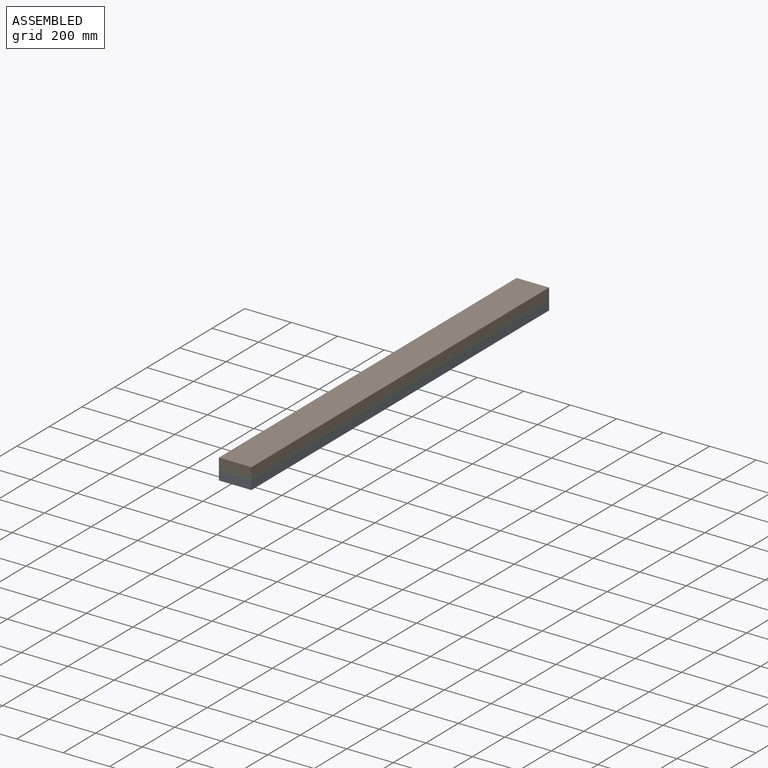
[diagram: assembled view]
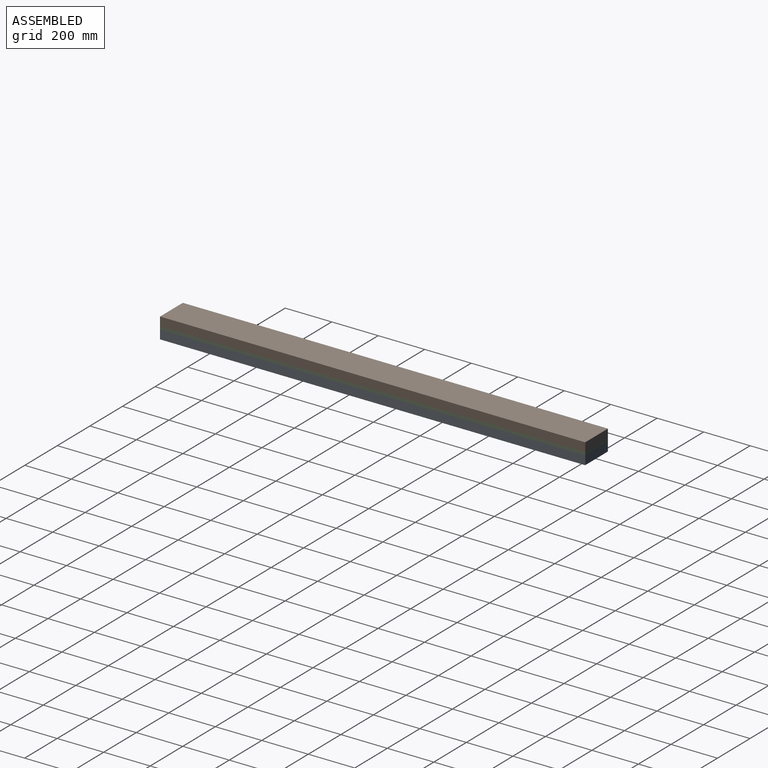
[diagram: assembled view, second angle]
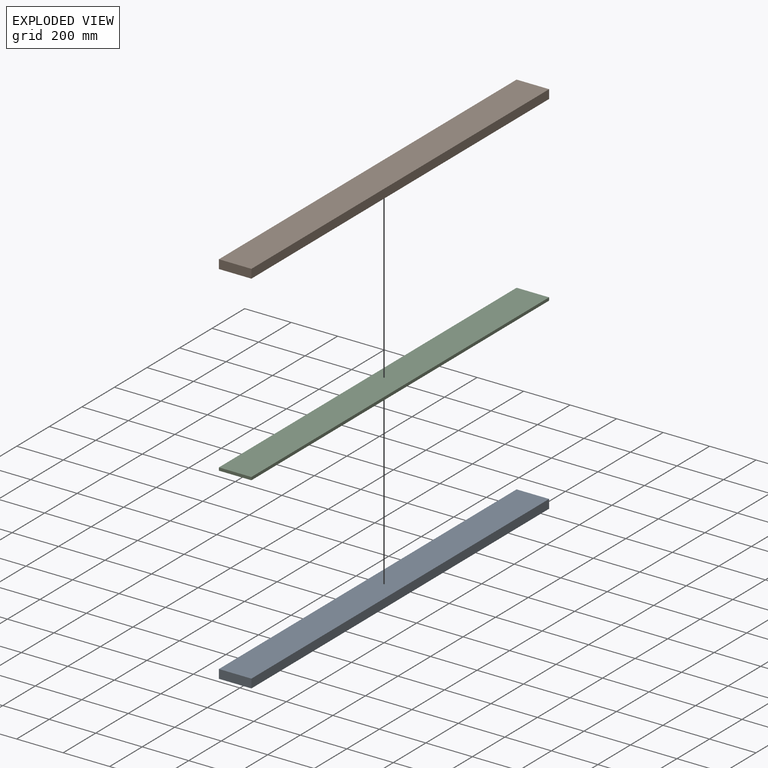
[diagram: exploded view]
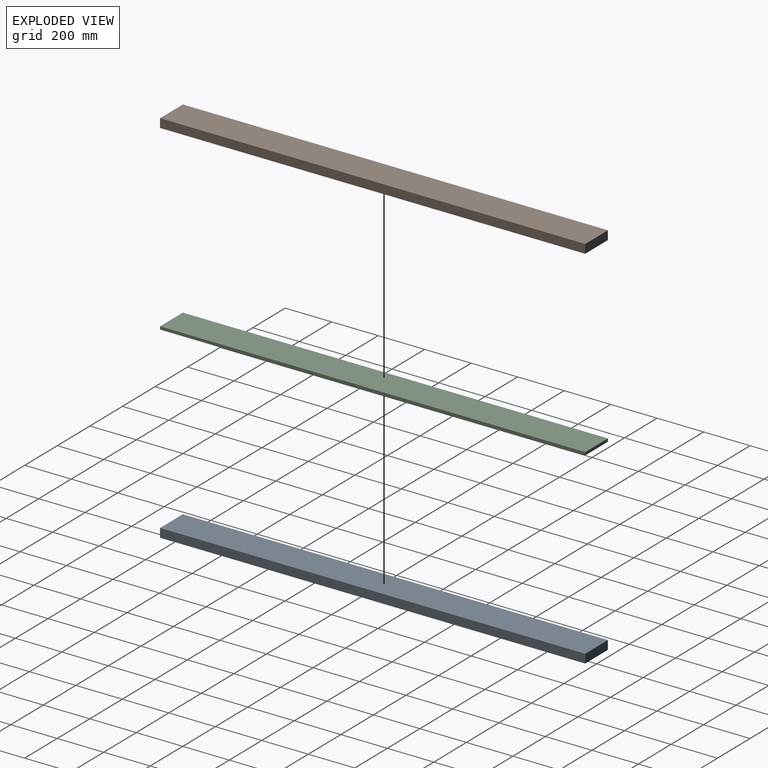
[diagram: exploded view, second angle]
ASSEMBLY  parts=3 mates=2
PART A: 6 faces, bbox 139.7x1828.8x38.1 mm
  f0: plane 1828.8x38.1mm, normal (-1,0,0), area 69677.3mm2, adj f1,f3,f4,f5
  f1: plane 1828.8x139.7mm, normal (0,0,-1), area 255483.4mm2, adj f0,f2,f4,f5
  f2: plane 1828.8x38.1mm, normal (1,0,0), area 69677.3mm2, adj f1,f3,f4,f5
  f3: plane 1828.8x139.7mm, normal (0,0,1), area 255483.4mm2, adj f0,f2,f4,f5
  f4: plane 139.7x38.1mm, normal (0,-1,0), area 5322.6mm2, adj f0,f1,f2,f3
  f5: plane 139.7x38.1mm, normal (0,1,0), area 5322.6mm2, adj f0,f1,f2,f3
PART B: same geometry as A
PART C: 6 faces, bbox 1828.8x139.7x12.7 mm
  f0: plane 139.7x12.7mm, normal (-1,0,0), area 1774.2mm2, adj f1,f3,f4,f5
  f1: plane 1828.8x12.7mm, normal (0,-1,0), area 23225.8mm2, adj f0,f2,f4,f5
  f2: plane 139.7x12.7mm, normal (1,0,0), area 1774.2mm2, adj f1,f3,f4,f5
  f3: plane 1828.8x12.7mm, normal (0,1,0), area 23225.8mm2, adj f0,f2,f4,f5
  f4: plane 1828.8x139.7mm, normal (0,0,1), area 255483.4mm2, adj f0,f1,f2,f3
  f5: plane 1828.8x139.7mm, normal (0,0,-1), area 255483.4mm2, adj f0,f1,f2,f3
PLACE A t=(-69.85,0,0)mm
PLACE B t=(-69.85,0,50.8)mm
PLACE C rot(axis=(0,0,-1),90deg) t=(-69.85,0,38.1)mm
MATE fastened C.f5 <-> A.f3  axis (0,0,-1) through (0,0,38.1)mm
MATE fastened B.f1 <-> C.f4  axis (0,0,-1) through (0,0,50.8)mm
